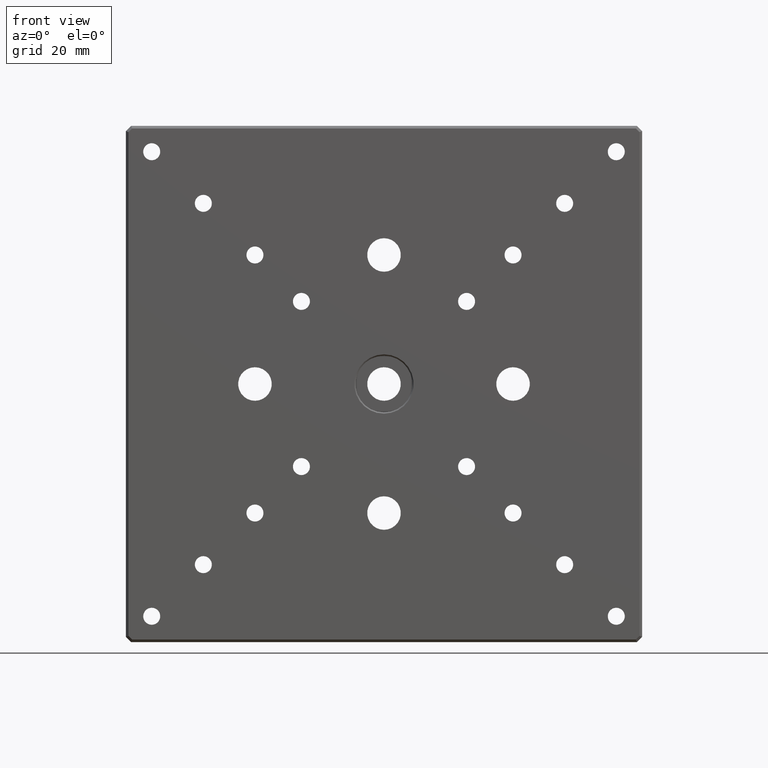
[diagram: clean part render]
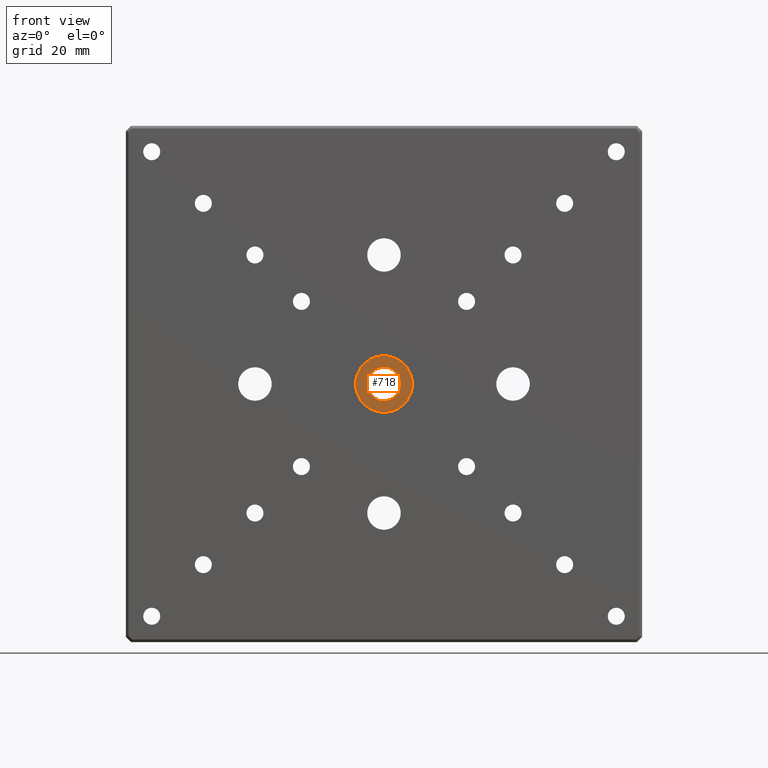
[diagram: same view with one face highlighted and labeled with its STEP entity id]
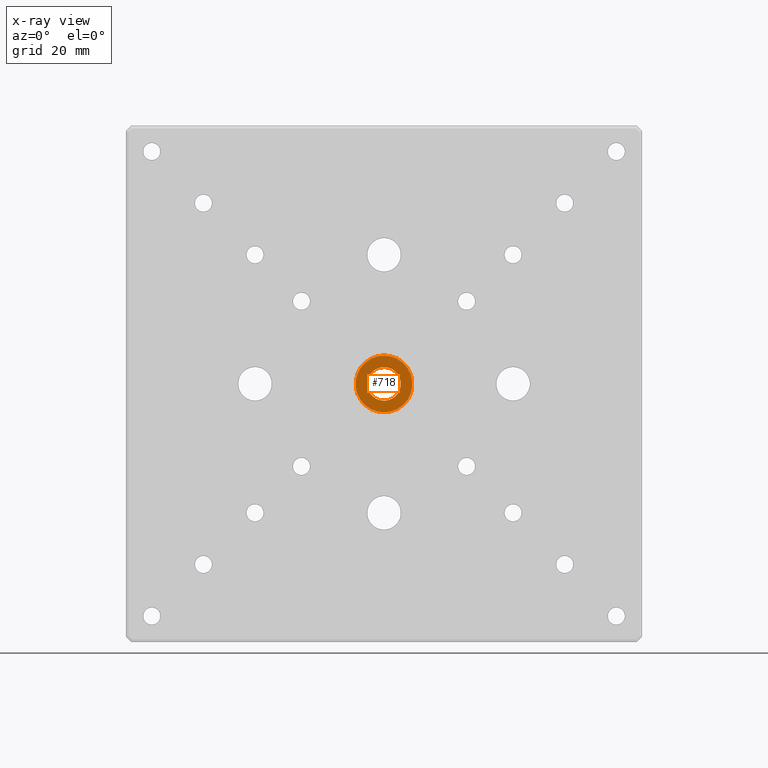
[diagram: x-ray of the same camera — body ghosted, the highlighted face saturated]
A machine part, front view. The second image highlights one B-rep face of the part: STEP entity #718.
The next image is the same camera in x-ray: the body ghosted, the highlighted face saturated — about 0% of this face is hidden behind the body in this view.
In plain terms, the highlighted planar face has unit normal (0, 1, 0).
Its self-contained STEP definition (entity closure, byte-faithful):
#15 = ORIENTED_EDGE ( 'NONE', *, *, #2012, .T. ) ;
#86 = VERTEX_POINT ( 'NONE', #1050 ) ;
#174 = CIRCLE ( 'NONE', #1751, 5.500000000000009770 ) ;
#265 = AXIS2_PLACEMENT_3D ( 'NONE', #768, #1714, #1550 ) ;
#326 = DIRECTION ( 'NONE',  ( -0.000000000000000000, -1.000000000000000000, -0.000000000000000000 ) ) ;
#344 = CARTESIAN_POINT ( 'NONE',  ( 0.000000000000000000, 6.500000000000000888, 0.000000000000000000 ) ) ;
#354 = DIRECTION ( 'NONE',  ( -0.000000000000000000, -1.000000000000000000, -0.000000000000000000 ) ) ;
#718 = ADVANCED_FACE ( 'NONE', ( #2040, #1539 ), #1223, .F. ) ;
#768 = CARTESIAN_POINT ( 'NONE',  ( 3.250000000000011546, 6.500000000000000888, 0.000000000000000000 ) ) ;
#810 = AXIS2_PLACEMENT_3D ( 'NONE', #344, #354, #1750 ) ;
#843 = CIRCLE ( 'NONE', #810, 3.250000000000011546 ) ;
#1043 = EDGE_LOOP ( 'NONE', ( #1046 ) ) ;
#1046 = ORIENTED_EDGE ( 'NONE', *, *, #1098, .F. ) ;
#1050 = CARTESIAN_POINT ( 'NONE',  ( 0.000000000000000000, 6.500000000000000888, -5.500000000000009770 ) ) ;
#1098 = EDGE_CURVE ( 'NONE', #1197, #1197, #843, .T. ) ;
#1197 = VERTEX_POINT ( 'NONE', #1320 ) ;
#1223 = PLANE ( 'NONE',  #265 ) ;
#1320 = CARTESIAN_POINT ( 'NONE',  ( 0.000000000000000000, 6.500000000000000888, -3.250000000000011546 ) ) ;
#1539 = FACE_OUTER_BOUND ( 'NONE', #1568, .T. ) ;
#1550 = DIRECTION ( 'NONE',  ( 0.000000000000000000, -0.000000000000000000, 1.000000000000000000 ) ) ;
#1568 = EDGE_LOOP ( 'NONE', ( #15 ) ) ;
#1572 = CARTESIAN_POINT ( 'NONE',  ( 0.000000000000000000, 6.500000000000000888, 0.000000000000000000 ) ) ;
#1714 = DIRECTION ( 'NONE',  ( 0.000000000000000000, 1.000000000000000000, 0.000000000000000000 ) ) ;
#1750 = DIRECTION ( 'NONE',  ( 0.000000000000000000, 0.000000000000000000, -1.000000000000000000 ) ) ;
#1751 = AXIS2_PLACEMENT_3D ( 'NONE', #1572, #326, #1767 ) ;
#1767 = DIRECTION ( 'NONE',  ( 0.000000000000000000, 0.000000000000000000, -1.000000000000000000 ) ) ;
#2012 = EDGE_CURVE ( 'NONE', #86, #86, #174, .T. ) ;
#2040 = FACE_BOUND ( 'NONE', #1043, .T. ) ;